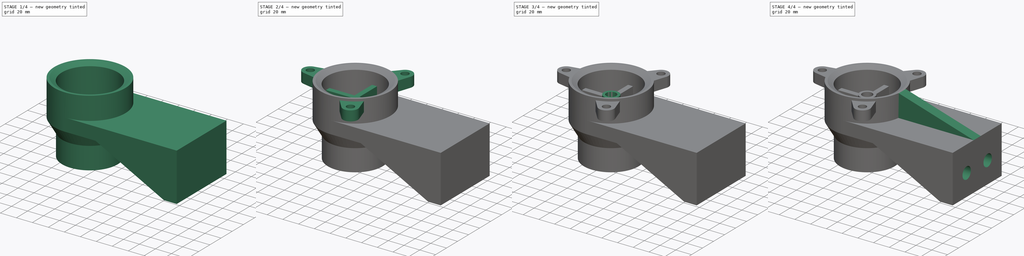
[diagram: build sequence overview — one tinted view per stage of 4, left to right]
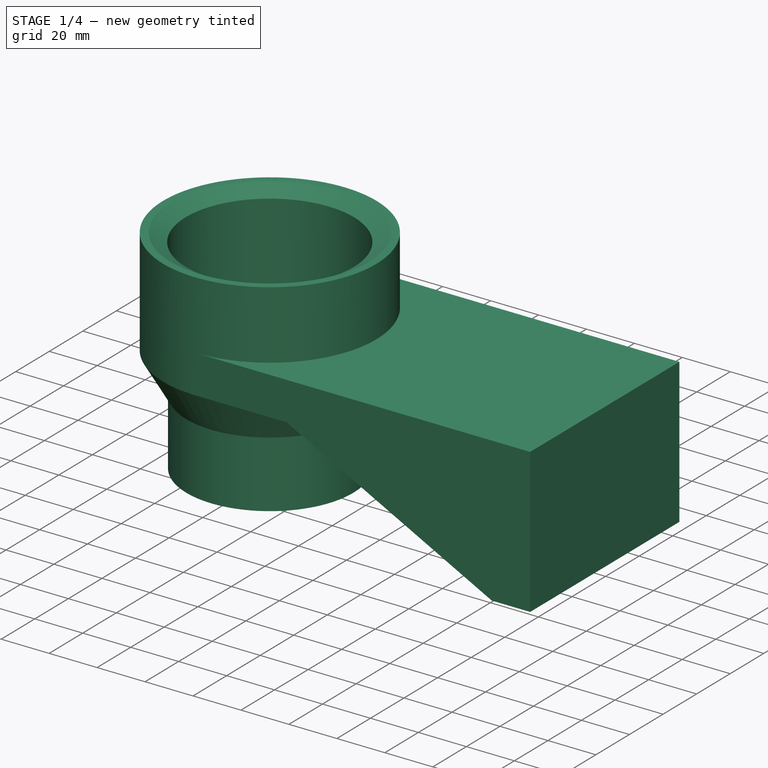
[diagram: stage 1 of 4 — iso view after this stage's code; geometry added in this stage tinted green]
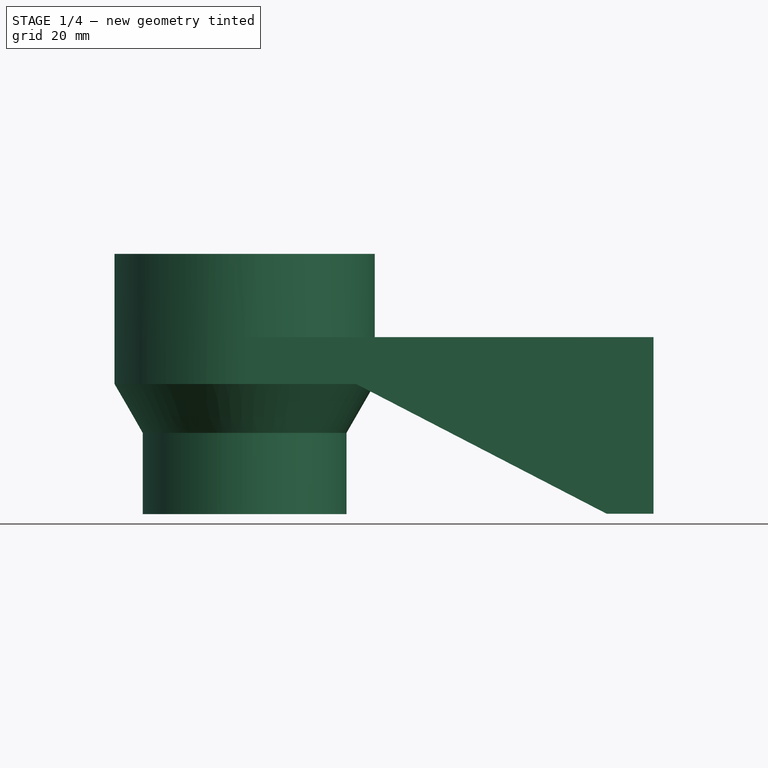
[diagram: stage 1 of 4 — front view after this stage's code; geometry added in this stage tinted green]
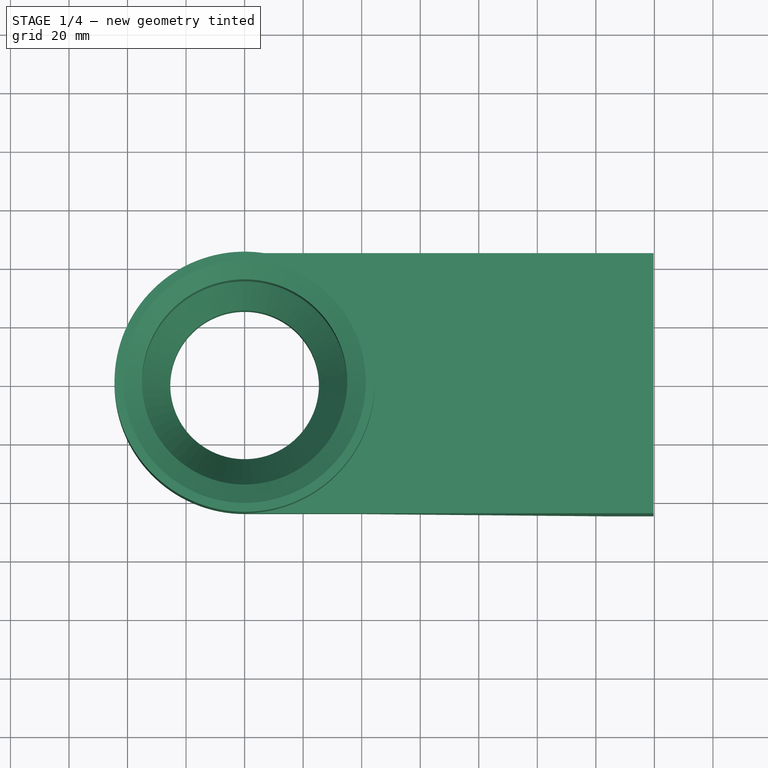
[diagram: stage 1 of 4 — top view after this stage's code; geometry added in this stage tinted green]
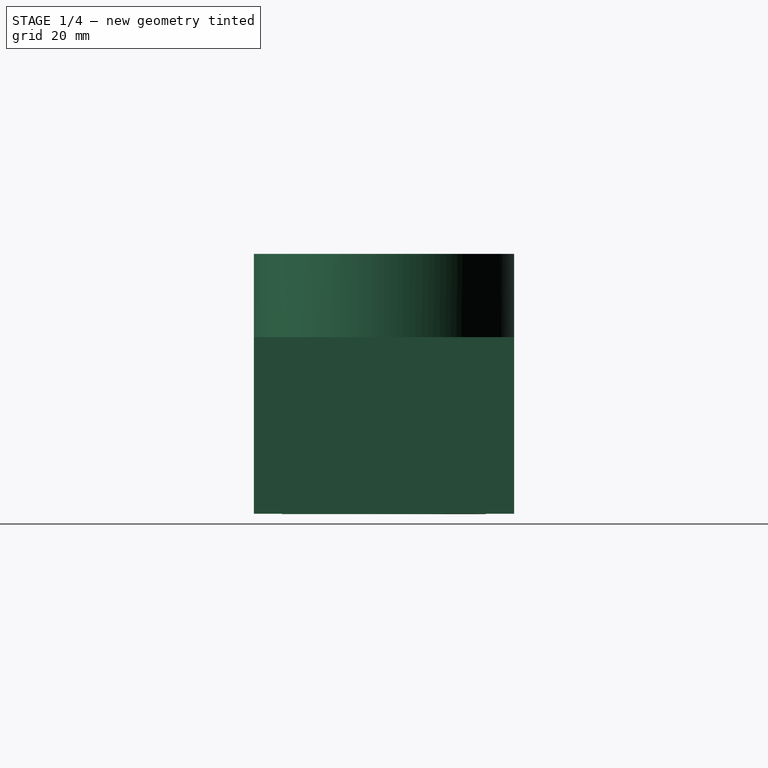
[diagram: stage 1 of 4 — right view after this stage's code; geometry added in this stage tinted green]
FCSTD DOCUMENT  (FreeCAD 0.17R9652 (Git))
Label: Moderate
License: All rights reserved
LicenseURL: http://en.wikipedia.org/wiki/All_rights_reserved
objects: Sketcher::SketchObject×10, PartDesign::Pad×5, PartDesign::Pocket×4, PartDesign::Plane×3, PartDesign::Revolution×1, PartDesign::PolarPattern×1, PartDesign::Body×1
note: 35 computed .brp shape members not serialized (recipe doc carries the construction recipe); baked Part::Feature solids carry a one-line shape summary decoded from their .brp

FEATURE [Sketcher::SketchObject] Sketch
  MapMode = 5
  Placement = pos=(0,0,0) rot=(1,0,0;1.5708rad)
  Support = -> [XZ_Plane]
  sketch-geometry (8):
    g0: LineSegment [constr] StartX=38.1 StartY=0 StartZ=0 EndX=38.1 EndY=-16.002 EndZ=0
    g1: LineSegment StartX=38.1 StartY=-16.002 StartZ=0 EndX=123.698 EndY=-60.325 EndZ=0
    g2: LineSegment StartX=123.698 StartY=-60.325 StartZ=0 EndX=139.7 EndY=-60.325 EndZ=0
    g3: LineSegment StartX=139.7 StartY=-60.325 StartZ=0 EndX=139.7 EndY=0 EndZ=0
    g4: LineSegment StartX=139.7 StartY=0 StartZ=0 EndX=38.1 EndY=0 EndZ=0
    g5: LineSegment StartX=38.1 StartY=0 StartZ=0 EndX=0 EndY=0 EndZ=0
    g6: LineSegment StartX=0 StartY=0 StartZ=0 EndX=0 EndY=-16.002 EndZ=0
    g7: LineSegment StartX=0 StartY=-16.002 StartZ=0 EndX=38.1 EndY=-16.002 EndZ=0
  constraints (22):
    c: Vertical(g0)
    c: Coincident(g0,g1)
    c: Coincident(g1,g2)
    c: Horizontal(g2)
    c: Coincident(g2,g3)
    c: Vertical(g3)
    c: Coincident(g3,g4)
    c: Coincident(g4,g0)
    c: Horizontal(g4)
    c: DistanceX(g2,g2) = 16.002
    c: DistanceX(g4,g4) = 101.6
    c: Equal(g0,g2)
    c: DistanceY(g3,g3) = 60.325
    c: Coincident(g0,g5)
    c: Coincident(g5,g-1)
    c: Coincident(g5,g6)
    c: PointOnObject(g6,g-2)
    c: Coincident(g6,g7)
    c: Coincident(g7,g0)
    c: Horizontal(g7)
    c: Horizontal(g5)
    c: DistanceX(g3) = 139.7
FEATURE [PartDesign::Pad] Pad
  Length = 88.9
  Length2 = 99.9998
  Midplane = true
  Placement = pos=(0,0,0) rot=(1,0,0;1.5708rad)
  Profile = -> Sketch
  Type = 0
FEATURE [Sketcher::SketchObject] Sketch001
  MapMode = 5
  Placement = pos=(0,0,0) rot=(1,0,0;1.5708rad)
  Support = -> [XZ_Plane]
  sketch-geometry (11):
    g0: LineSegment StartX=44.45 StartY=28.448 StartZ=0 EndX=44.45 EndY=-16.002 EndZ=0
    g1: LineSegment StartX=44.45 StartY=-16.002 StartZ=0 EndX=34.798 EndY=-32.7198 EndZ=0
    g2: LineSegment StartX=34.798 StartY=-32.7198 StartZ=0 EndX=34.798 EndY=-60.452 EndZ=0
    g3: LineSegment StartX=34.798 StartY=-60.452 StartZ=0 EndX=25.4 EndY=-60.452 EndZ=0
    g4: LineSegment StartX=25.4 StartY=-60.452 StartZ=0 EndX=25.4 EndY=-32.7198 EndZ=0
    g5: LineSegment StartX=25.4 StartY=-32.7198 StartZ=0 EndX=35.052 EndY=-16.002 EndZ=0
    g6: LineSegment StartX=35.052 StartY=-16.002 StartZ=0 EndX=35.052 EndY=24.7818 EndZ=0
    g7: LineSegment StartX=35.052 StartY=24.7818 StartZ=0 EndX=41.402 EndY=28.448 EndZ=0
    g8: LineSegment StartX=41.402 StartY=28.448 StartZ=0 EndX=44.45 EndY=28.448 EndZ=0
    g9: LineSegment [constr] StartX=25.4 StartY=-32.7198 StartZ=0 EndX=34.798 EndY=-32.7198 EndZ=0
    g10: LineSegment [constr] StartX=35.052 StartY=-16.002 StartZ=0 EndX=44.45 EndY=-16.002 EndZ=0
  constraints (31):
    c: Vertical(g0)
    c: Coincident(g0,g1)
    c: Coincident(g1,g2)
    c: Vertical(g2)
    c: Coincident(g2,g3)
    c: Horizontal(g3)
    c: Coincident(g3,g4)
    c: Vertical(g4)
    c: Coincident(g4,g5)
    c: Coincident(g5,g6)
    c: Vertical(g6)
    c: Coincident(g6,g7)
    c: Coincident(g7,g8)
    c: Coincident(g0,g8)
    c: Horizontal(g8)
    c: DistanceX(g0) = 44.45
    c: Coincident(g9,g4)
    c: Horizontal(g9)
    c: Coincident(g10,g5)
    c: Coincident(g10,g0)
    c: Horizontal(g10)
    c: Coincident(g1,g9)
    c: DistanceX(g6) = 35.052
    c: DistanceX(g4) = 25.4
    c: DistanceX(g7) = 41.402
    c: Equal(g9,g10)
    c: Angle(g0,g1) = 2.61799
    c: DistanceY(g0,g0) = 44.45
    c: DistanceY(g2,g0) = 88.9
    c: Angle(g7,g8) = 2.61799
    c: DistanceY(g0,g-1) = 16.002
FEATURE [PartDesign::Revolution] Revolution
  Angle = 360
  Axis = (0,0,1)
  Base = (0,0,0)
  BaseFeature = -> Pad
  Placement = pos=(0,0,0) rot=(1,0,0;1.5708rad)
  Profile = -> Sketch001
  ReferenceAxis = -> Sketch001 [V_Axis]
  Reversed = true
FEATURE [Sketcher::SketchObject] Sketch002
  MapMode = 5
  Support = -> [XY_Plane]
  sketch-geometry (1):
    g0: Circle CenterX=0 CenterY=0 CenterZ=0 NormalX=0 NormalY=0 NormalZ=1 Radius=35.052
  constraints (2):
    c: Coincident(g0,g-1)
    c: Radius(g0) = 35.052
FEATURE [PartDesign::Pocket] Pocket
  BaseFeature = -> Revolution
  Length = 16.002
  Placement = pos=(0,0,0) rot=(1,0,0;1.5708rad)
  Profile = -> Sketch002
  Type = 0
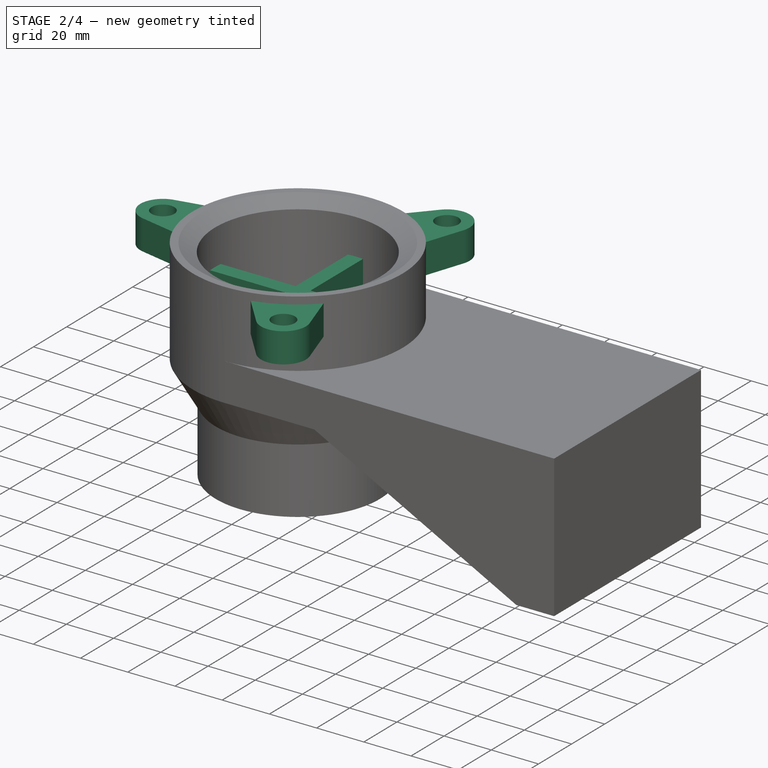
[diagram: stage 2 of 4 — iso view after this stage's code; geometry added in this stage tinted green]
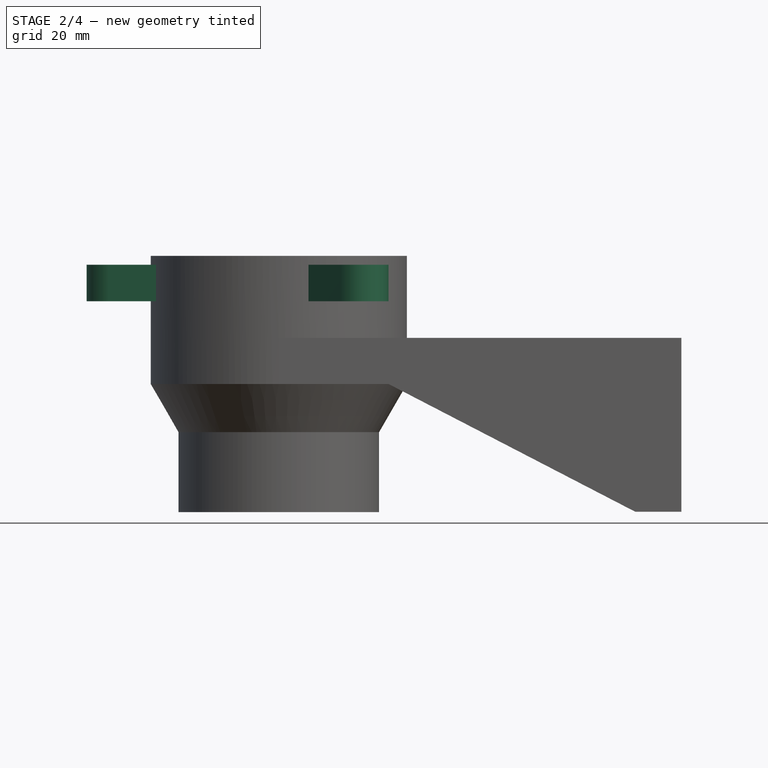
[diagram: stage 2 of 4 — front view after this stage's code; geometry added in this stage tinted green]
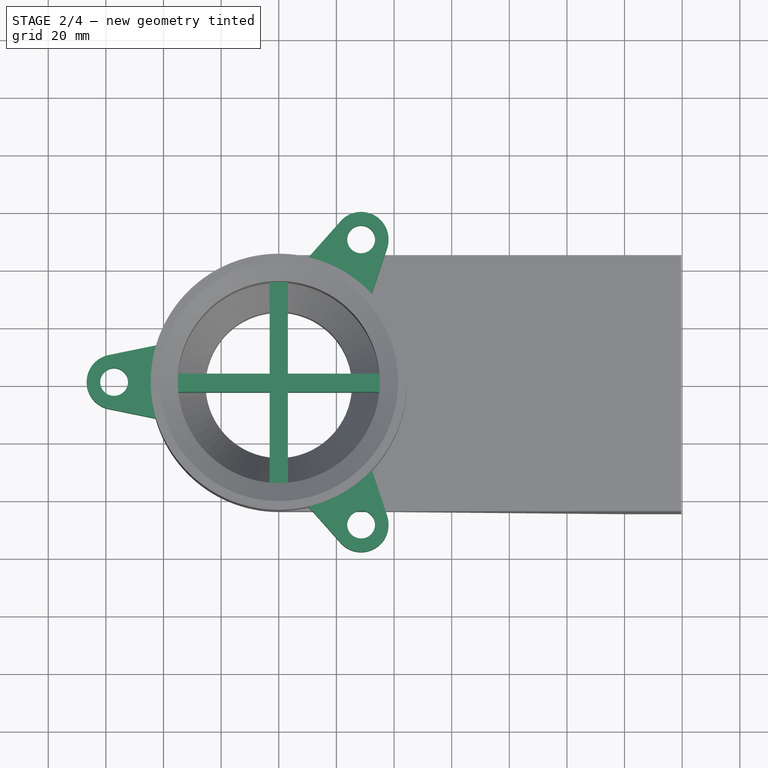
[diagram: stage 2 of 4 — top view after this stage's code; geometry added in this stage tinted green]
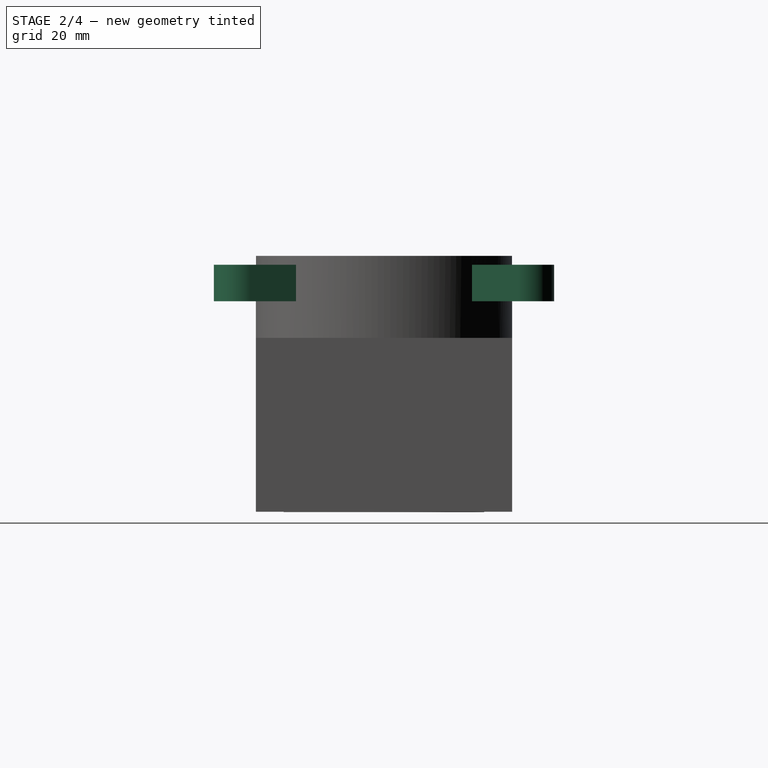
[diagram: stage 2 of 4 — right view after this stage's code; geometry added in this stage tinted green]
FEATURE [PartDesign::Plane] DatumPlane
  MapMode = 5
  Placement = pos=(0,0,25.4) rot=(0,0,1;0rad)
  Support = -> [XY_Plane]
  superPlacement = pos=(0,0,25.4) rot=(0,0,1;0rad)
FEATURE [Sketcher::SketchObject] Sketch003
  MapMode = 5
  Placement = pos=(0,0,25.4) rot=(0,0,1;0rad)
  Support = -> [DatumPlane]
  sketch-geometry (7):
    g0: Circle [constr] CenterX=0 CenterY=0 CenterZ=0 NormalX=0 NormalY=0 NormalZ=1 Radius=44.45
    g1: Circle [constr] CenterX=0 CenterY=0 CenterZ=0 NormalX=0 NormalY=0 NormalZ=1 Radius=41.402
    g2: ArcOfCircle CenterX=-57.15 CenterY=0 CenterZ=0 NormalX=0 NormalY=0 NormalZ=1 Radius=9.525 StartAngle=1.77262 EndAngle=4.51056
    g3: LineSegment StartX=-59.0593 StartY=9.33167 StartZ=0 EndX=-42.5971 EndY=12.7 EndZ=0
    g4: LineSegment StartX=-42.5971 StartY=12.7 StartZ=0 EndX=-42.5971 EndY=-12.7 EndZ=0
    g5: LineSegment StartX=-42.5971 StartY=-12.7 StartZ=0 EndX=-59.0594 EndY=-9.33166 EndZ=0
    g6: Circle CenterX=-57.15 CenterY=0 CenterZ=0 NormalX=0 NormalY=0 NormalZ=1 Radius=4.826
  constraints (17):
    c: Coincident(g0,g-1)
    c: Radius(g0) = 44.45
    c: Coincident(g1,g-1)
    c: Radius(g1) = 41.402
    c: PointOnObject(g2,g-1)
    c: Tangent(g2,g3) = 1.5708
    c: Coincident(g3,g4)
    c: Coincident(g4,g5)
    c: Coincident(g5,g2)
    c: Tangent(g5,g2)
    c: Symmetric(g4,g3,g-1)
    c: DistanceY(g4,g4) = 25.4
    c: PointOnObject(g3,g0)
    c: DistanceX(g2,g-1) = 57.15
    c: Coincident(g6,g2)
    c: Radius(g6) = 4.826
    c: Radius(g2) = 9.525
FEATURE [PartDesign::Pad] Pad001
  BaseFeature = -> Pocket
  Length = 12.7
  Length2 = 99.9998
  Placement = pos=(0,0,0) rot=(1,0,0;1.5708rad)
  Profile = -> Sketch003
  Reversed = true
  Type = 0
FEATURE [PartDesign::PolarPattern] PolarPattern
  Angle = 360
  Axis = -> Sketch003 [N_Axis]
  BaseFeature = -> Pad001
  Occurrences = 3
  Originals = -> [Pad001]
  Placement = pos=(0,0,0) rot=(1,0,0;1.5708rad)
FEATURE [PartDesign::Plane] DatumPlane001
  MapMode = 5
  Placement = pos=(0,0,0.125) rot=(0,0,1;0rad)
  Support = -> [XY_Plane]
  superPlacement = pos=(0,0,0.125) rot=(0,0,1;0rad)
  expr: superPlacement.Base.z = 1.125 - 1
FEATURE [Sketcher::SketchObject] Sketch004
  MapMode = 5
  Placement = pos=(0,0,0.125) rot=(0,0,1;0rad)
  Support = -> [DatumPlane001]
  sketch-geometry (13):
    g0: LineSegment StartX=-35.052 StartY=3.175 StartZ=0 EndX=-3.175 EndY=3.175 EndZ=0
    g1: LineSegment StartX=35.052 StartY=3.175 StartZ=0 EndX=35.052 EndY=-3.175 EndZ=0
    g2: LineSegment StartX=35.052 StartY=-3.175 StartZ=0 EndX=3.175 EndY=-3.175 EndZ=0
    g3: LineSegment StartX=-35.052 StartY=-3.175 StartZ=0 EndX=-35.052 EndY=3.175 EndZ=0
    g4: Circle [constr] CenterX=0 CenterY=0 CenterZ=0 NormalX=0 NormalY=0 NormalZ=1 Radius=35.052
    g5: LineSegment StartX=3.175 StartY=-35.052 StartZ=0 EndX=-3.175 EndY=-35.052 EndZ=0
    g6: LineSegment StartX=-3.175 StartY=-35.052 StartZ=0 EndX=-3.175 EndY=-3.175 EndZ=0
    g7: LineSegment StartX=-3.175 StartY=35.052 StartZ=0 EndX=3.175 EndY=35.052 EndZ=0
    g8: LineSegment StartX=3.175 StartY=35.052 StartZ=0 EndX=3.175 EndY=3.175 EndZ=0
    g9: LineSegment StartX=-3.175 StartY=3.175 StartZ=0 EndX=-3.175 EndY=35.052 EndZ=0
    g10: LineSegment StartX=3.175 StartY=3.175 StartZ=0 EndX=35.052 EndY=3.175 EndZ=0
    g11: LineSegment StartX=3.175 StartY=-3.175 StartZ=0 EndX=3.175 EndY=-35.052 EndZ=0
    g12: LineSegment StartX=-3.175 StartY=-3.175 StartZ=0 EndX=-35.052 EndY=-3.175 EndZ=0
  constraints (34):
    c: Coincident(g10,g1)
    c: Coincident(g1,g2)
    c: Coincident(g12,g3)
    c: Coincident(g3,g0)
    c: Horizontal(g0)
    c: Horizontal(g2)
    c: Vertical(g1)
    c: Vertical(g3)
    c: Coincident(g4,g-1)
    c: Radius(g4) = 35.052
    c: Coincident(g5,g6)
    c: Coincident(g9,g7)
    c: Coincident(g7,g8)
    c: Coincident(g11,g5)
    c: Horizontal(g5)
    c: Horizontal(g7)
    c: Vertical(g6)
    c: Vertical(g8)
    c: Symmetric(g7,g9,g-2)
    c: Symmetric(g7,g5,g-1)
    c: Tangent(g7,g4)
    c: Symmetric(g10,g1,g-1)
    c: Symmetric(g10,g0,g-2)
    c: Tangent(g1,g4)
    c: DistanceY(g1,g1) = 6.35
    c: Equal(g1,g7)
    c: Tangent(g6,g9)
    c: Coincident(g0,g9)
    c: Tangent(g0,g10)
    c: Coincident(g8,g10)
    c: Tangent(g8,g11)
    c: Coincident(g2,g11)
    c: Coincident(g12,g6)
    c: Tangent(g2,g12)
FEATURE [PartDesign::Pad] Pad002
  BaseFeature = -> PolarPattern
  Length = 19.05
  Length2 = 99.9998
  Midplane = true
  Placement = pos=(0,0,0) rot=(1,0,0;1.5708rad)
  Profile = -> Sketch004
  Type = 0
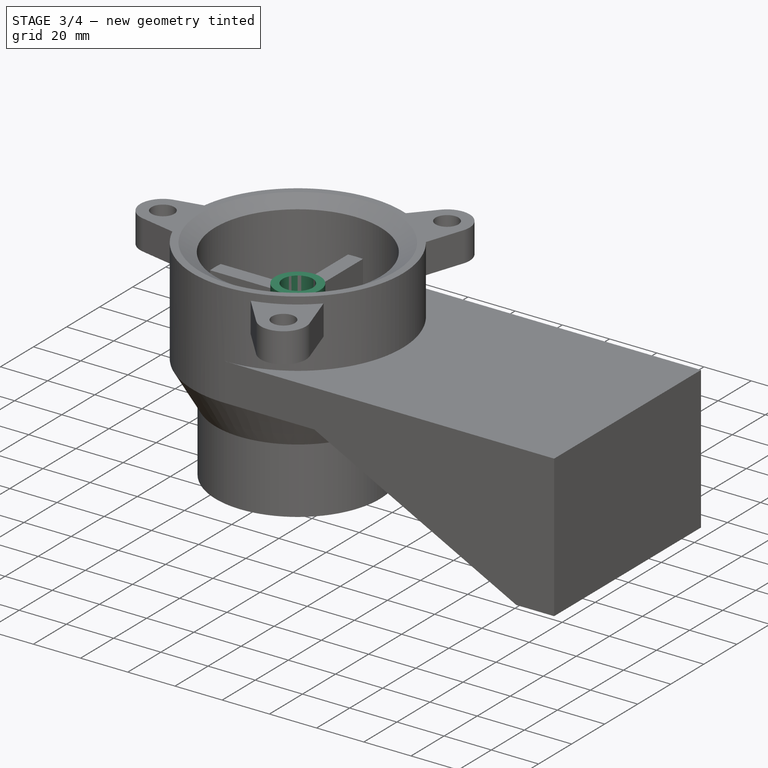
[diagram: stage 3 of 4 — iso view after this stage's code; geometry added in this stage tinted green]
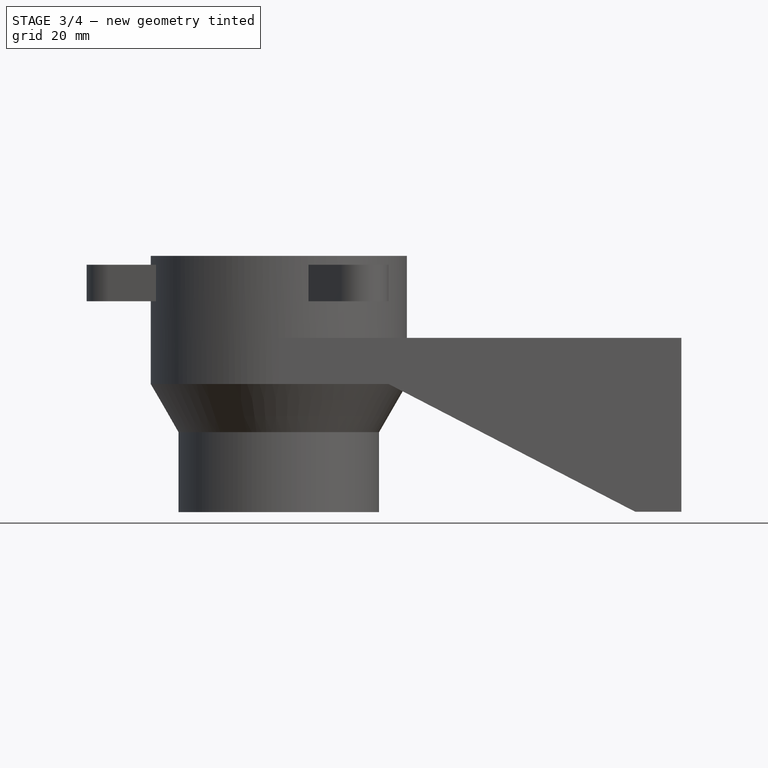
[diagram: stage 3 of 4 — front view after this stage's code; geometry added in this stage tinted green]
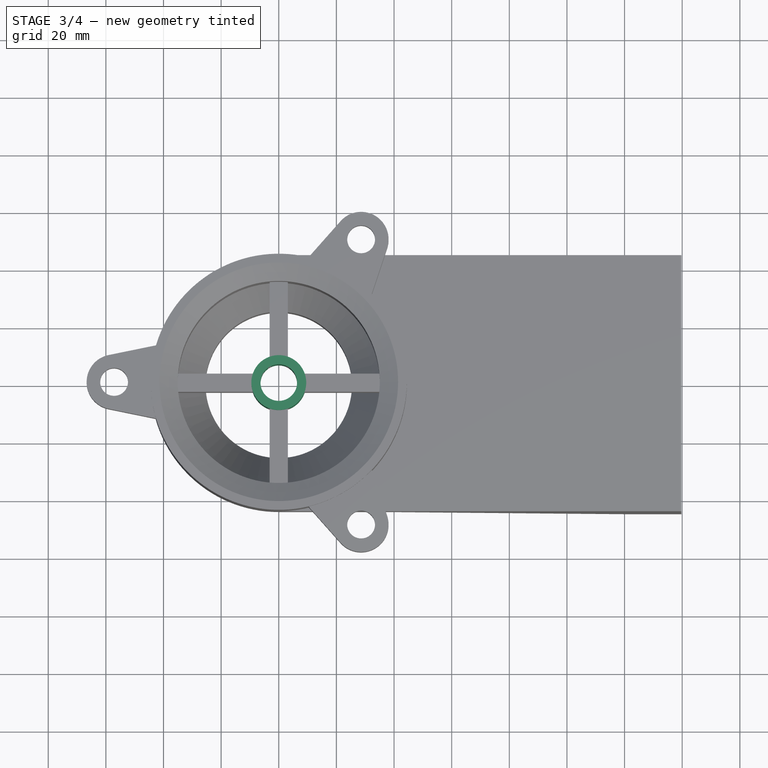
[diagram: stage 3 of 4 — top view after this stage's code; geometry added in this stage tinted green]
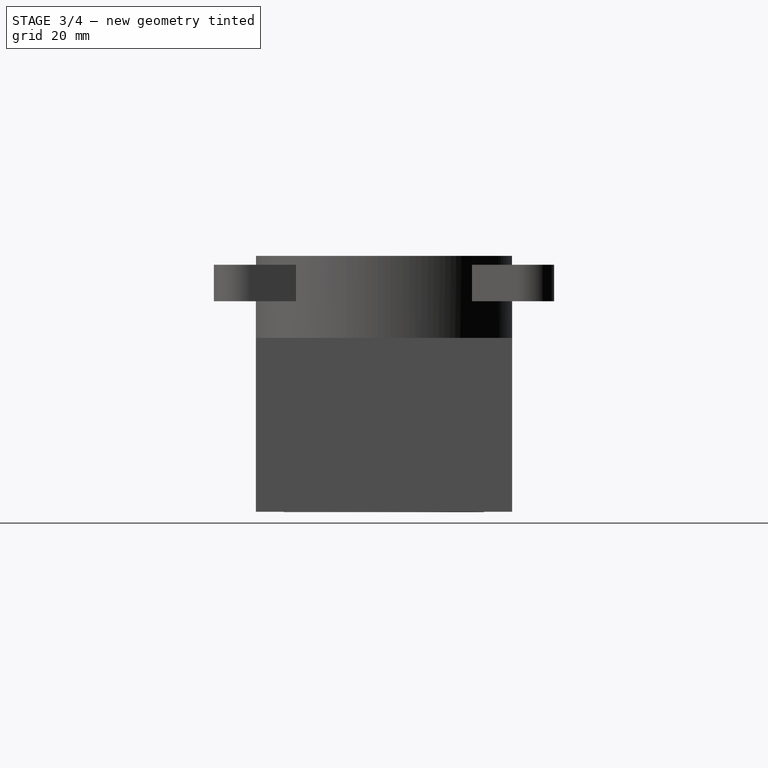
[diagram: stage 3 of 4 — right view after this stage's code; geometry added in this stage tinted green]
FEATURE [Sketcher::SketchObject] Sketch005
  MapMode = 5
  Placement = pos=(0,0,0.125) rot=(0,0,1;0rad)
  Support = -> [DatumPlane001]
  sketch-geometry (1):
    g0: Circle CenterX=0 CenterY=0 CenterZ=0 NormalX=0 NormalY=0 NormalZ=1 Radius=9.525
  constraints (2):
    c: Coincident(g0,g-1)
    c: Radius(g0) = 9.525
FEATURE [PartDesign::Pad] Pad003
  BaseFeature = -> Pad002
  Length = 25.4
  Length2 = 99.9998
  Midplane = true
  Placement = pos=(0,0,0) rot=(1,0,0;1.5708rad)
  Profile = -> Sketch005
  Type = 0
FEATURE [Sketcher::SketchObject] Sketch006
  MapMode = 5
  Placement = pos=(0,0,0.125) rot=(0,0,1;0rad)
  Support = -> [DatumPlane001]
  sketch-geometry (1):
    g0: Circle CenterX=0 CenterY=0 CenterZ=0 NormalX=0 NormalY=0 NormalZ=1 Radius=6.35
  constraints (2):
    c: Coincident(g0,g-1)
    c: Radius(g0) = 6.35
FEATURE [PartDesign::Pocket] Pocket001
  BaseFeature = -> Pad003
  Length = 25.4
  Midplane = true
  Placement = pos=(0,0,0) rot=(1,0,0;1.5708rad)
  Profile = -> Sketch006
  Type = 0
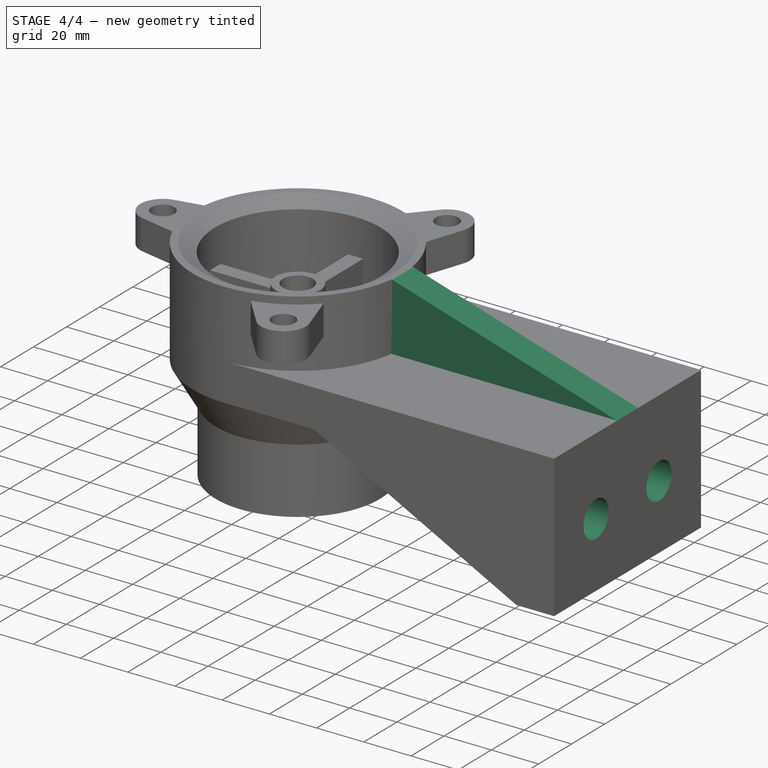
[diagram: stage 4 of 4 — iso view after this stage's code; geometry added in this stage tinted green]
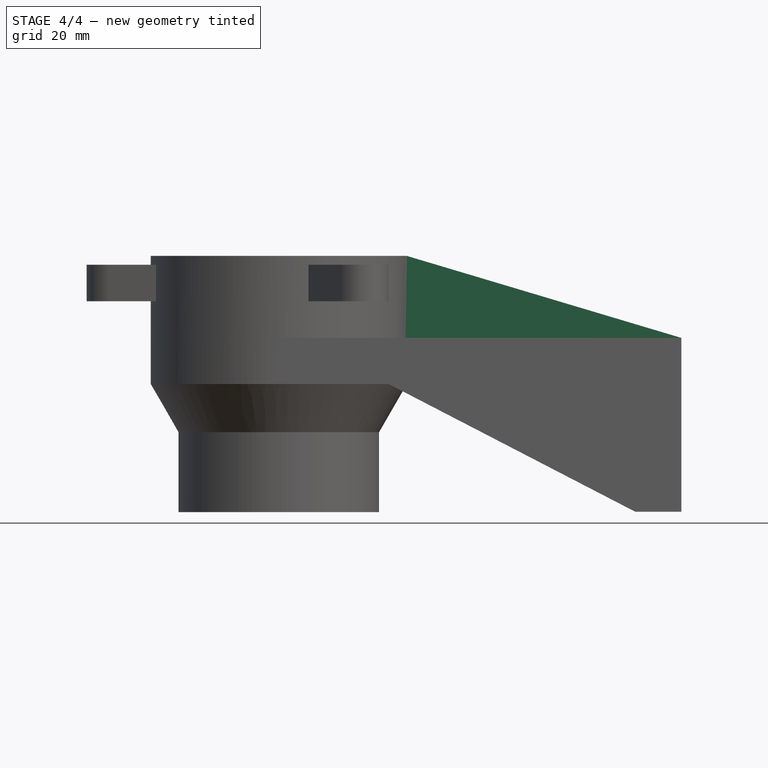
[diagram: stage 4 of 4 — front view after this stage's code; geometry added in this stage tinted green]
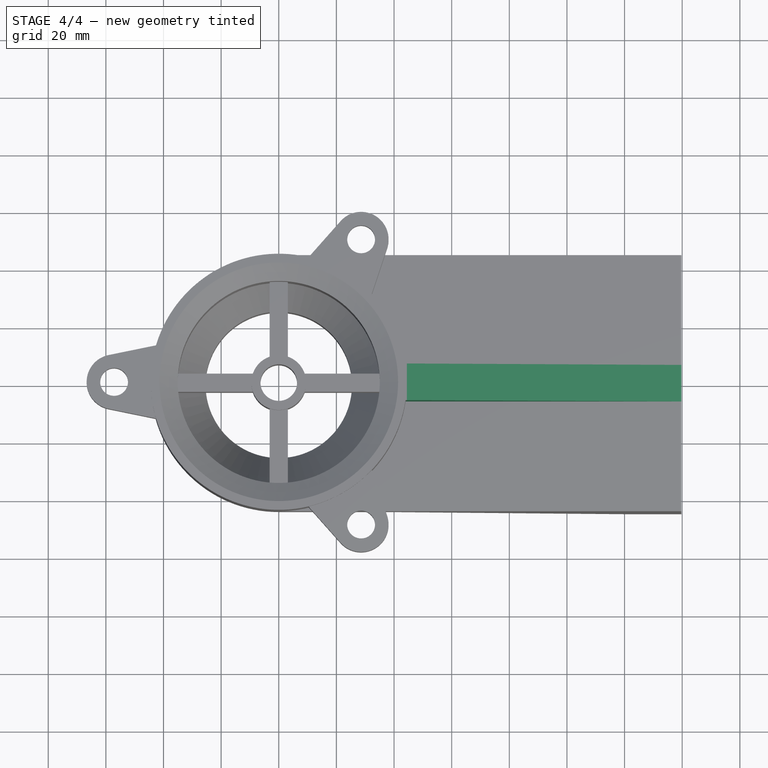
[diagram: stage 4 of 4 — top view after this stage's code; geometry added in this stage tinted green]
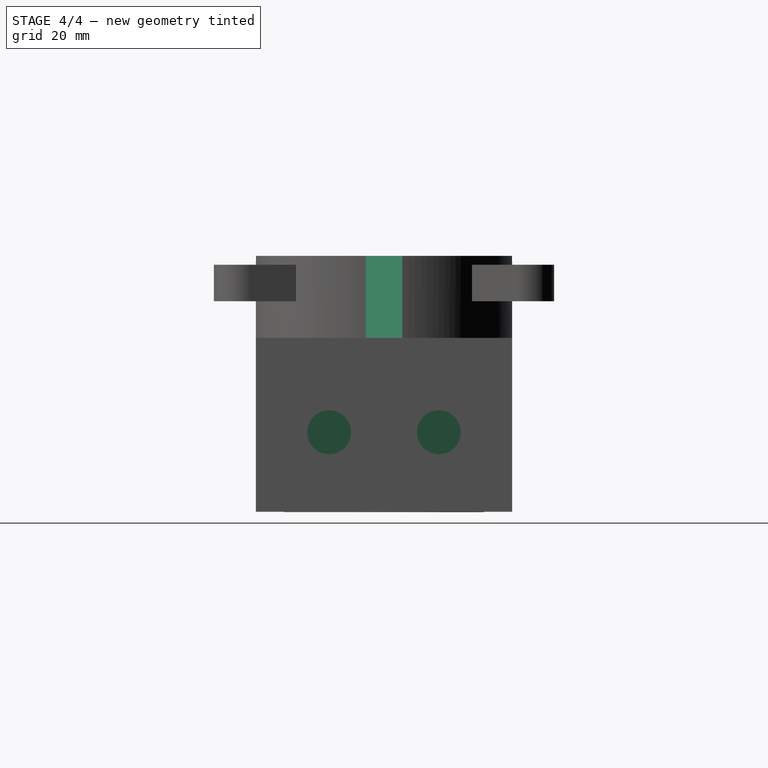
[diagram: stage 4 of 4 — right view after this stage's code; geometry added in this stage tinted green]
FEATURE [Sketcher::SketchObject] Sketch007
  MapMode = 5
  Support = -> [XY_Plane]
  sketch-geometry (5):
    g0: Circle [constr] CenterX=0 CenterY=0 CenterZ=0 NormalX=0 NormalY=0 NormalZ=1 Radius=44.45
    g1: LineSegment StartX=139.7 StartY=6.35 StartZ=0 EndX=43.9941 EndY=6.35 EndZ=0
    g2: LineSegment StartX=43.9941 StartY=6.35 StartZ=0 EndX=43.9941 EndY=-6.35 EndZ=0
    g3: LineSegment StartX=43.9941 StartY=-6.35 StartZ=0 EndX=139.7 EndY=-6.35 EndZ=0
    g4: LineSegment StartX=139.7 StartY=-6.35 StartZ=0 EndX=139.7 EndY=6.35 EndZ=0
  constraints (14):
    c: Coincident(g0,g-1)
    c: Radius(g0) = 44.45
    c: Coincident(g1,g2)
    c: Coincident(g2,g3)
    c: Coincident(g3,g4)
    c: Coincident(g4,g1)
    c: Horizontal(g1)
    c: Horizontal(g3)
    c: Vertical(g2)
    c: Vertical(g4)
    c: PointOnObject(g2,g0)
    c: Symmetric(g1,g3,g-1)
    c: DistanceY(g4,g4) = 12.7
    c: DistanceX(g1) = 139.7
FEATURE [PartDesign::Pad] Pad004
  BaseFeature = -> Pocket001
  Length = 28.448
  Length2 = 99.9998
  Placement = pos=(0,0,0) rot=(1,0,0;1.5708rad)
  Profile = -> Sketch007
  Type = 0
FEATURE [Sketcher::SketchObject] Sketch008
  MapMode = 5
  Placement = pos=(0,0,0) rot=(1,0,0;1.5708rad)
  Support = -> [XZ_Plane]
  sketch-geometry (3):
    g0: LineSegment StartX=44.45 StartY=28.448 StartZ=0 EndX=139.7 EndY=0 EndZ=0
    g1: LineSegment StartX=139.7 StartY=28.448 StartZ=0 EndX=44.45 EndY=28.448 EndZ=0
    g2: LineSegment StartX=139.7 StartY=0 StartZ=0 EndX=139.7 EndY=28.448 EndZ=0
  constraints (9):
    c: PointOnObject(g0,g-1)
    c: Coincident(g1,g0)
    c: Horizontal(g1)
    c: DistanceX(g1,g1) = 95.25
    c: Coincident(g2,g0)
    c: Coincident(g2,g1)
    c: Vertical(g2)
    c: DistanceY(g2,g2) = 28.448
    c: DistanceX(g0) = 139.7
FEATURE [PartDesign::Pocket] Pocket002
  BaseFeature = -> Pad004
  Length = 5.00126
  Midplane = true
  Placement = pos=(0,0,0) rot=(1,0,0;1.5708rad)
  Profile = -> Sketch008
  Type = 1
FEATURE [PartDesign::Plane] DatumPlane002
  MapMode = 5
  Placement = pos=(139.7,0,0) rot=(0.57735,0.57735,0.57735;2.0944rad)
  Support = -> [YZ_Plane]
  superPlacement = pos=(0,0,139.7) rot=(0,0,1;0rad)
FEATURE [Sketcher::SketchObject] Sketch009
  MapMode = 5
  Placement = pos=(139.7,0,0) rot=(0.57735,0.57735,0.57735;2.0944rad)
  Support = -> [DatumPlane002]
  sketch-geometry (2):
    g0: Circle CenterX=-19.05 CenterY=-32.766 CenterZ=0 NormalX=0 NormalY=0 NormalZ=1 Radius=7.62
    g1: Circle CenterX=19.05 CenterY=-32.766 CenterZ=0 NormalX=0 NormalY=0 NormalZ=1 Radius=7.62
  constraints (5):
    c: Symmetric(g1,g0,g-2)
    c: Equal(g0,g1)
    c: DistanceX(g0,g1) = 38.1
    c: Radius(g1) = 7.62
    c: DistanceY(g0) = -32.766
FEATURE [PartDesign::Pocket] Pocket003
  BaseFeature = -> Pocket002
  Length = 16.002
  Placement = pos=(0,0,0) rot=(1,0,0;1.5708rad)
  Profile = -> Sketch009
  Type = 0
FEATURE [PartDesign::Body] Body
  Group = -> [Sketch,Pad,Sketch001,Revolution,Sketch002,Pocket,DatumPlane,Sketch003,Pad001,PolarPattern,DatumPlane001,Sketch004,Pad002,Sketch005,Pad003,Sketch006,Pocket001,Sketch007,Pad004,Sketch008,Pocket002,DatumPlane002,Sketch009,Pocket003]
  Origin = -> BodyOrigin
  Tip = -> Pocket003
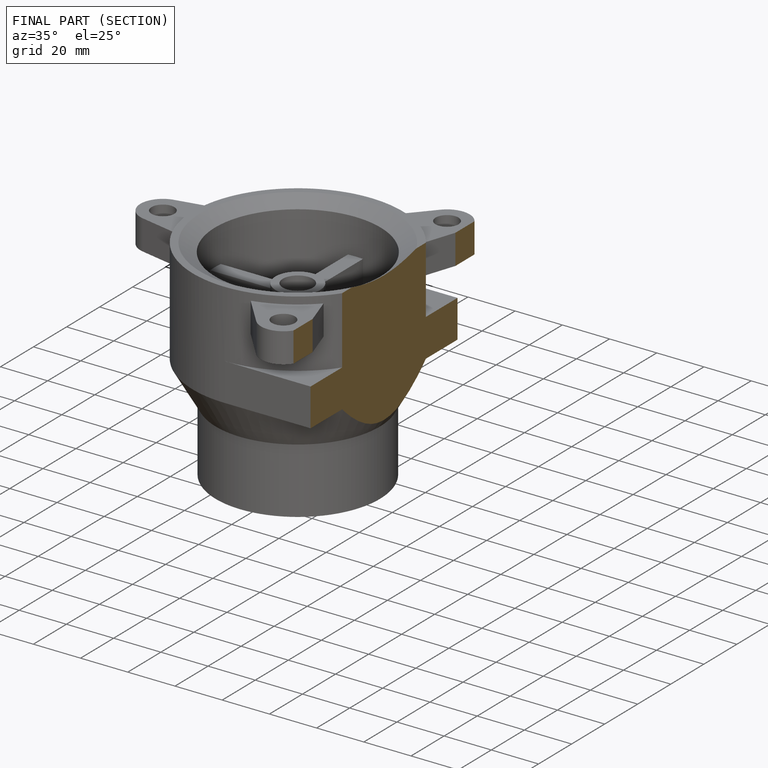
[diagram: finished part — half-section view (interior)]
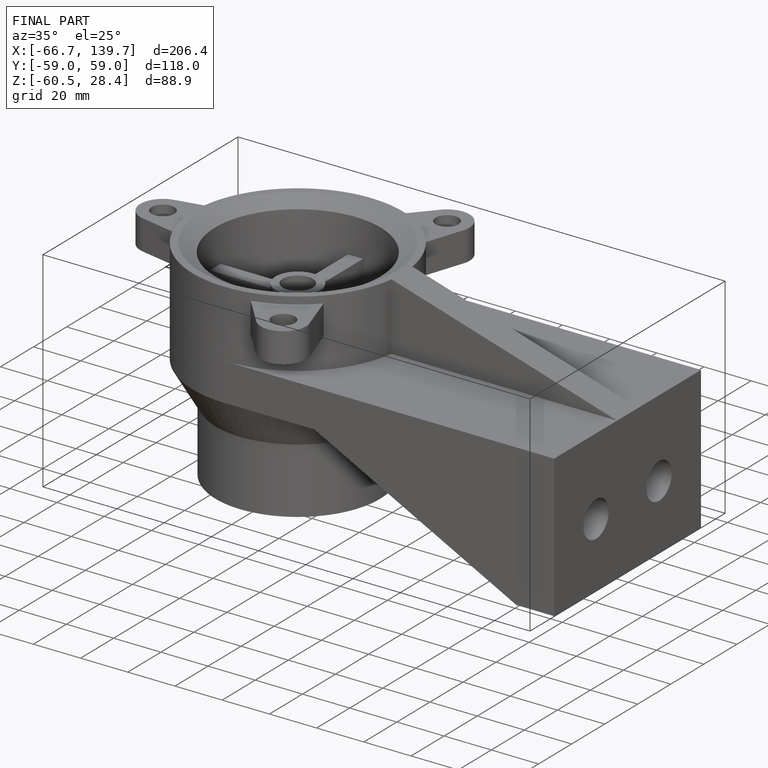
[diagram: finished part — iso view with bounding-box wireframe]
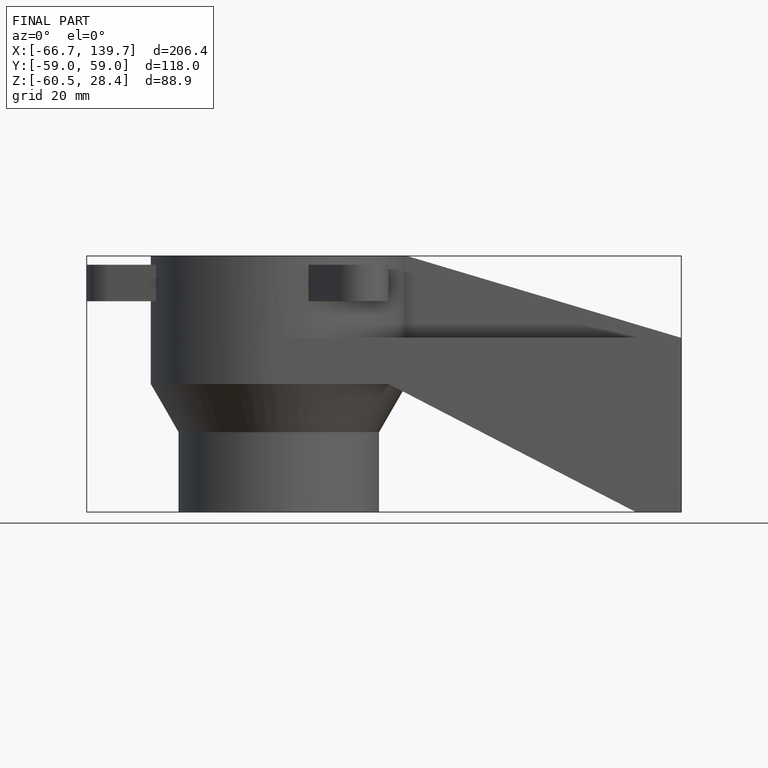
[diagram: finished part — front view with bounding-box wireframe]
